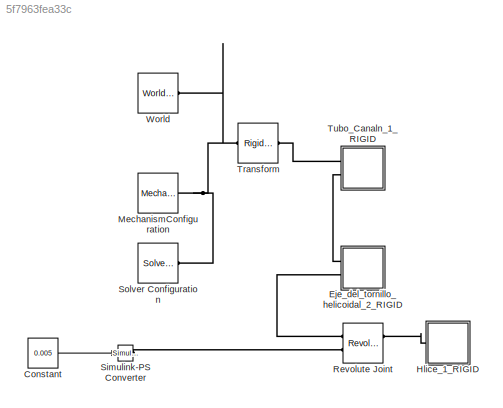
MODEL slx_5f7963fea33c
KIND model
CONFIG AbsTol = auto
CONFIG EnableMultiTasking = off
CONFIG FixedStep = auto
CONFIG MaxStep = 1e-3
CONFIG MinStep = auto
CONFIG RelTol = 1e-3
CONFIG SampleTimeConstraint = Unconstrained
CONFIG SolverName = VariableStepAuto
CONFIG StartTime = 0.0
CONFIG StopTime = 30.0
WORKSPACE source: external: MATLAB File  (data not in archive)
BLOCK [Constant] Constant
  Value = 0.005
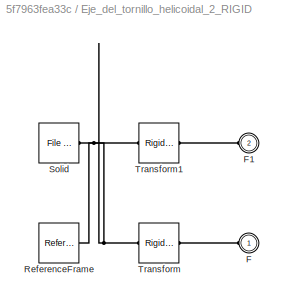
BLOCK [SubSystem] Eje_del_tornillo_helicoidal_2_RIGID
  Ports = [0, 0, 0, 0, 0, 2]
  RequestExecContextInheritance = off
BLOCK [PMIOPort] Eje_del_tornillo_helicoidal_2_RIGID/F
  Side = Left
BLOCK [PMIOPort] Eje_del_tornillo_helicoidal_2_RIGID/F1
  Port = 2
  Side = Left
BLOCK [Reference] Eje_del_tornillo_helicoidal_2_RIGID/ReferenceFrame  REF=sm_lib/Frames and
Transforms/Reference
Frame
  Ports = [0, 0, 0, 0, 0, 0, 1]
  SourceBlock = sm_lib/Frames and\nTransforms/Reference\nFrame
  SourceProductBaseCode = MS
  SourceType = Reference\nFrame
BLOCK [Reference] Eje_del_tornillo_helicoidal_2_RIGID/Solid  REF=sm_lib/Body Elements/File Solid
  Ports = [0, 0, 0, 0, 0, 0, 1]
  SourceBlock = sm_lib/Body Elements/File Solid
  SourceProductBaseCode = MS
  SourceType = File Solid
BLOCK [Reference] Eje_del_tornillo_helicoidal_2_RIGID/Transform  REF=sm_lib/Frames and
Transforms/Rigid
Transform
  Ports = [0, 0, 0, 0, 0, 1, 1]
  SourceBlock = sm_lib/Frames and\nTransforms/Rigid\nTransform
  SourceProductBaseCode = MS
  SourceType = Rigid\nTransform
BLOCK [Reference] Eje_del_tornillo_helicoidal_2_RIGID/Transform1  REF=sm_lib/Frames and
Transforms/Rigid
Transform
  Ports = [0, 0, 0, 0, 0, 1, 1]
  SourceBlock = sm_lib/Frames and\nTransforms/Rigid\nTransform
  SourceProductBaseCode = MS
  SourceType = Rigid\nTransform
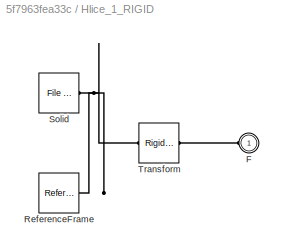
BLOCK [SubSystem] Hlice_1_RIGID
  Ports = [0, 0, 0, 0, 0, 1]
  RequestExecContextInheritance = off
BLOCK [PMIOPort] Hlice_1_RIGID/F
  Side = Left
BLOCK [Reference] Hlice_1_RIGID/ReferenceFrame  REF=sm_lib/Frames and
Transforms/Reference
Frame
  Ports = [0, 0, 0, 0, 0, 0, 1]
  SourceBlock = sm_lib/Frames and\nTransforms/Reference\nFrame
  SourceProductBaseCode = MS
  SourceType = Reference\nFrame
BLOCK [Reference] Hlice_1_RIGID/Solid  REF=sm_lib/Body Elements/File Solid
  Ports = [0, 0, 0, 0, 0, 0, 1]
  SourceBlock = sm_lib/Body Elements/File Solid
  SourceProductBaseCode = MS
  SourceType = File Solid
BLOCK [Reference] Hlice_1_RIGID/Transform  REF=sm_lib/Frames and
Transforms/Rigid
Transform
  Ports = [0, 0, 0, 0, 0, 1, 1]
  SourceBlock = sm_lib/Frames and\nTransforms/Rigid\nTransform
  SourceProductBaseCode = MS
  SourceType = Rigid\nTransform
BLOCK [Reference] MechanismConfiguration  REF=sm_lib/Utilities/Mechanism
Configuration
  Ports = [0, 0, 0, 0, 0, 0, 1]
  SourceBlock = sm_lib/Utilities/Mechanism\nConfiguration
  SourceProductBaseCode = MS
  SourceType = Mechanism\nConfiguration
BLOCK [Reference] Revolute Joint  REF=sm_lib/Joints/Revolute Joint
  Ports = [0, 0, 0, 0, 0, 2, 2]
  SourceBlock = sm_lib/Joints/Revolute Joint
  SourceProductBaseCode = MS
  SourceType = Revolute Joint
BLOCK [Reference] Simulink-PS Converter  REF=nesl_utility/Simulink-PS
Converter
  Ports = [1, 0, 0, 0, 0, 0, 1]
  SourceBlock = nesl_utility/Simulink-PS\nConverter
  SourceProductBaseCode = SS,PW,VE
  SourceType = Simulink-PS\nConverter
BLOCK [Reference] Solver Configuration  REF=nesl_utility/Solver
Configuration
  Ports = [0, 0, 0, 0, 0, 0, 1]
  SourceBlock = nesl_utility/Solver\nConfiguration
  SourceProductBaseCode = SS,PW,VE
  SourceType = Solver\nConfiguration
BLOCK [Reference] Transform  REF=sm_lib/Frames and
Transforms/Rigid
Transform
  Ports = [0, 0, 0, 0, 0, 1, 1]
  SourceBlock = sm_lib/Frames and\nTransforms/Rigid\nTransform
  SourceProductBaseCode = MS
  SourceType = Rigid\nTransform
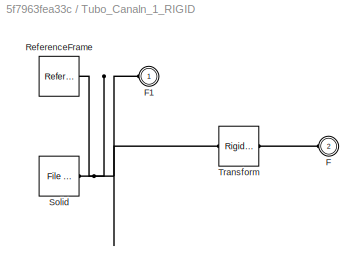
BLOCK [SubSystem] Tubo_Canaln_1_RIGID
  Ports = [0, 0, 0, 0, 0, 2]
  RequestExecContextInheritance = off
BLOCK [PMIOPort] Tubo_Canaln_1_RIGID/F
  Port = 2
  Side = Left
BLOCK [PMIOPort] Tubo_Canaln_1_RIGID/F1
  Side = Left
BLOCK [Reference] Tubo_Canaln_1_RIGID/ReferenceFrame  REF=sm_lib/Frames and
Transforms/Reference
Frame
  Ports = [0, 0, 0, 0, 0, 0, 1]
  SourceBlock = sm_lib/Frames and\nTransforms/Reference\nFrame
  SourceProductBaseCode = MS
  SourceType = Reference\nFrame
BLOCK [Reference] Tubo_Canaln_1_RIGID/Solid  REF=sm_lib/Body Elements/File Solid
  Ports = [0, 0, 0, 0, 0, 0, 1]
  SourceBlock = sm_lib/Body Elements/File Solid
  SourceProductBaseCode = MS
  SourceType = File Solid
BLOCK [Reference] Tubo_Canaln_1_RIGID/Transform  REF=sm_lib/Frames and
Transforms/Rigid
Transform
  Ports = [0, 0, 0, 0, 0, 1, 1]
  SourceBlock = sm_lib/Frames and\nTransforms/Rigid\nTransform
  SourceProductBaseCode = MS
  SourceType = Rigid\nTransform
BLOCK [Reference] World  REF=sm_lib/Frames and
Transforms/World Frame
  Ports = [0, 0, 0, 0, 0, 0, 1]
  SourceBlock = sm_lib/Frames and\nTransforms/World Frame
  SourceProductBaseCode = MS
  SourceType = World Frame
LINE Constant:1 -> Simulink-PS Converter:1
PLINE Eje_del_tornillo_helicoidal_2_RIGID/F1:RConn1 -- Eje_del_tornillo_helicoidal_2_RIGID/Transform1:RConn1
PLINE Eje_del_tornillo_helicoidal_2_RIGID/F:RConn1 -- Eje_del_tornillo_helicoidal_2_RIGID/Transform:RConn1
PNET net1: Eje_del_tornillo_helicoidal_2_RIGID/ReferenceFrame:RConn1 -- Eje_del_tornillo_helicoidal_2_RIGID/Solid:RConn1 -- Eje_del_tornillo_helicoidal_2_RIGID/Transform1:LConn1 -- Eje_del_tornillo_helicoidal_2_RIGID/Transform:LConn1
PLINE Eje_del_tornillo_helicoidal_2_RIGID:LConn1 -- Tubo_Canaln_1_RIGID:LConn2
PLINE Eje_del_tornillo_helicoidal_2_RIGID:LConn2 -- Revolute Joint:LConn1
PLINE Hlice_1_RIGID/F:RConn1 -- Hlice_1_RIGID/Transform:RConn1
PNET net2: Hlice_1_RIGID/ReferenceFrame:RConn1 -- Hlice_1_RIGID/Solid:RConn1 -- Hlice_1_RIGID/Transform:LConn1
PLINE Hlice_1_RIGID:LConn1 -- Revolute Joint:RConn1
PNET net3: MechanismConfiguration:RConn1 -- Solver Configuration:RConn1 -- Transform:LConn1 -- World:RConn1
PLINE Revolute Joint:LConn2 -- Simulink-PS Converter:RConn1
PLINE Transform:RConn1 -- Tubo_Canaln_1_RIGID:LConn1
PNET net4: Tubo_Canaln_1_RIGID/F1:RConn1 -- Tubo_Canaln_1_RIGID/ReferenceFrame:RConn1 -- Tubo_Canaln_1_RIGID/Solid:RConn1 -- Tubo_Canaln_1_RIGID/Transform:LConn1
PLINE Tubo_Canaln_1_RIGID/F:RConn1 -- Tubo_Canaln_1_RIGID/Transform:RConn1
note: PNET lines group multi-terminal physical nets as a canonical sorted terminal list (undirected conserving connections); 2-terminal nets keep the pairwise PLINE form
